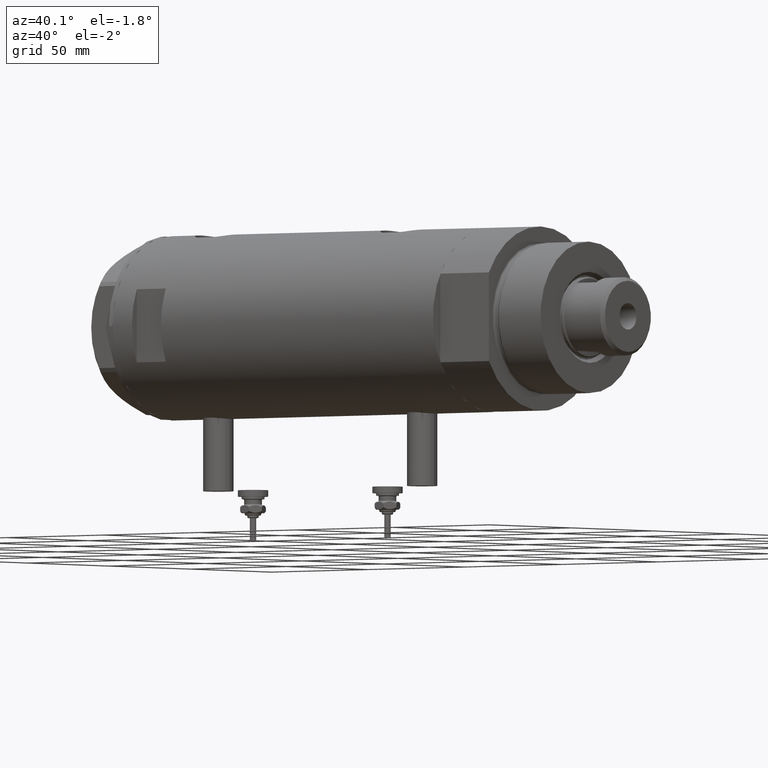
[diagram: clean part render]
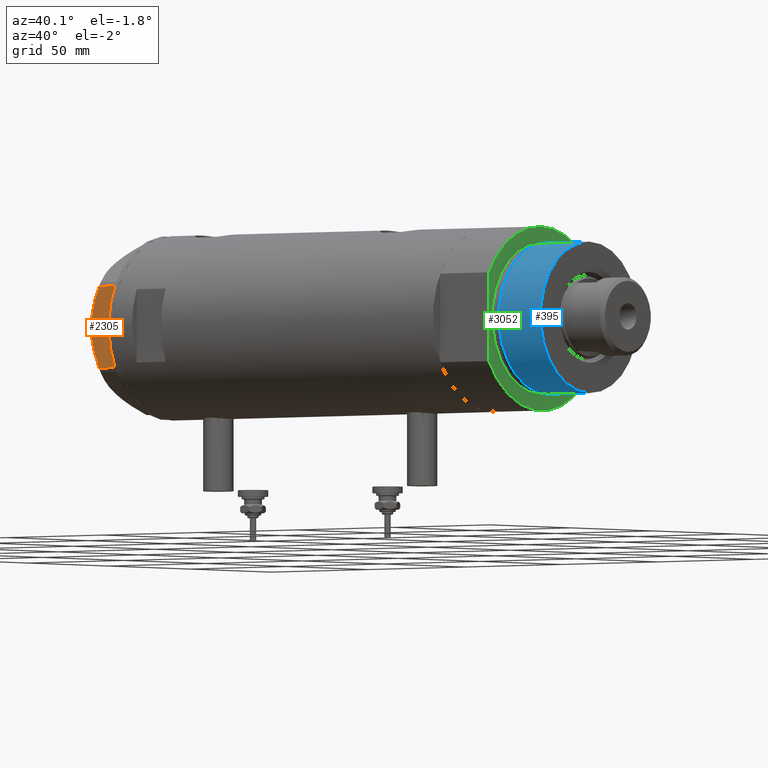
[diagram: same view with three faces highlighted in distinct colors, each labeled with its STEP entity id]
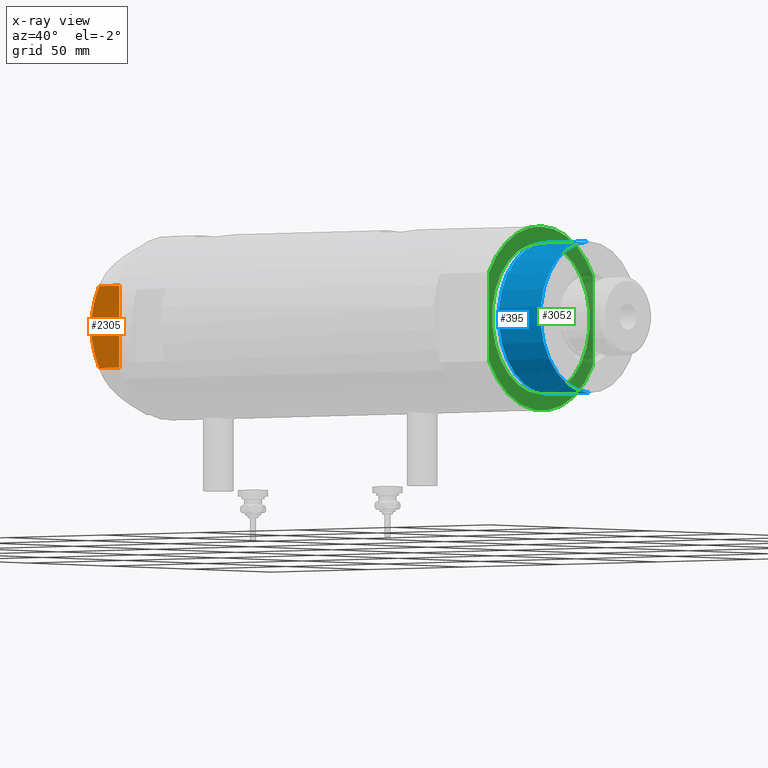
[diagram: x-ray of the same camera — body ghosted, the three highlighted faces saturated]
A machine part, auxiliary view with three faces highlighted in distinct colors.
The next image is the same camera in x-ray (body ghosted, the three faces saturated) — at least one of them is partly hidden behind the body in this view.
Their STEP definitions:

[orange] entity #2305 — the highlighted planar face has unit normal (-0, 1, 0).
#73 = CARTESIAN_POINT ( 'NONE',  ( -30.00000000000000000, 16.20050807568875584, 10.40518423703603546 ) ) ;
#97 = VERTEX_POINT ( 'NONE', #157 ) ;
#105 = FACE_OUTER_BOUND ( 'NONE', #4644, .T. ) ;
#157 = CARTESIAN_POINT ( 'NONE',  ( -30.00000000000000000, -16.20050807568876294, 0.000000000000000000 ) ) ;
#203 = VECTOR ( 'NONE', #2700, 1000.000000000000000 ) ;
#223 = CARTESIAN_POINT ( 'NONE',  ( -29.99999999999999289, -13.63320717147166405, 11.55272916346384804 ) ) ;
#227 = EDGE_CURVE ( 'NONE', #5030, #296, #5788, .T. ) ;
#296 = VERTEX_POINT ( 'NONE', #500 ) ;
#299 = CARTESIAN_POINT ( 'NONE',  ( -30.00000000000000000, -16.20050807568876294, 10.40518423703603901 ) ) ;
#353 = CARTESIAN_POINT ( 'NONE',  ( -30.00000000000000000, 0.000000000000000000, 14.50000000000000000 ) ) ;
#400 = ORIENTED_EDGE ( 'NONE', *, *, #4878, .T. ) ;
#500 = CARTESIAN_POINT ( 'NONE',  ( -30.00000000000000000, 16.20050807568875584, 0.000000000000000000 ) ) ;
#507 = VERTEX_POINT ( 'NONE', #5776 ) ;
#867 = CARTESIAN_POINT ( 'NONE',  ( -30.00000000000000000, 16.20050807568875584, 14.50000000000000000 ) ) ;
#922 = EDGE_CURVE ( 'NONE', #5118, #507, #4824, .T. ) ;
#932 = ORIENTED_EDGE ( 'NONE', *, *, #3757, .F. ) ;
#1185 = CARTESIAN_POINT ( 'NONE',  ( -30.00000000000000000, -0.7060353153488233557, 14.49999999999999822 ) ) ;
#1221 = LINE ( 'NONE', #5331, #3192 ) ;
#1722 = ORIENTED_EDGE ( 'NONE', *, *, #227, .T. ) ;
#1750 = CARTESIAN_POINT ( 'NONE',  ( -30.00000000000000000, 16.20050807568875584, 10.40518423703603546 ) ) ;
#1806 = DIRECTION ( 'NONE',  ( -0.000000000000000000, 0.000000000000000000, -1.000000000000000000 ) ) ;
#1849 = VECTOR ( 'NONE', #5240, 1000.000000000000000 ) ;
#2066 = CARTESIAN_POINT ( 'NONE',  ( -30.00000000000000355, -1.418661615092686290, 14.47469700449902952 ) ) ;
#2097 = CARTESIAN_POINT ( 'NONE',  ( -29.99999999999999289, -14.92797448277034533, 10.99622797424084553 ) ) ;
#2110 = AXIS2_PLACEMENT_3D ( 'NONE', #4120, #5578, #1806 ) ;
#2231 = CARTESIAN_POINT ( 'NONE',  ( -30.00000000000000000, 0.000000000000000000, 14.50000000000000000 ) ) ;
#2305 = ADVANCED_FACE ( 'NONE', ( #105 ), #3311, .F. ) ;
#2647 = CARTESIAN_POINT ( 'NONE',  ( -30.00000000000000000, 5.593935073701701732, 14.09487059093540573 ) ) ;
#2700 = DIRECTION ( 'NONE',  ( 0.000000000000000000, 0.000000000000000000, -1.000000000000000000 ) ) ;
#2903 = LINE ( 'NONE', #3896, #1849 ) ;
#2972 = CARTESIAN_POINT ( 'NONE',  ( -29.99999999999999289, -15.56759648729806322, 10.70591879357992227 ) ) ;
#3004 = CARTESIAN_POINT ( 'NONE',  ( -29.99999999999999645, -9.671229349009038856, 13.00645148086949554 ) ) ;
#3058 = CARTESIAN_POINT ( 'NONE',  ( -29.99999999999999645, -12.97715359595204809, 11.81918444541430624 ) ) ;
#3093 = CARTESIAN_POINT ( 'NONE',  ( -30.00000000000000711, 8.981118657900116986, 13.19130745470829247 ) ) ;
#3192 = VECTOR ( 'NONE', #3500, 1000.000000000000000 ) ;
#3311 = PLANE ( 'NONE',  #2110 ) ;
#3399 = CARTESIAN_POINT ( 'NONE',  ( -30.00000000000000000, -3.526431665117130798, 14.30125973663612626 ) ) ;
#3500 = DIRECTION ( 'NONE',  ( 0.000000000000000000, -1.000000000000000000, 0.000000000000000000 ) ) ;
#3549 = CARTESIAN_POINT ( 'NONE',  ( -30.00000000000000000, 11.66725319103952607, 12.31690447555093293 ) ) ;
#3582 = CARTESIAN_POINT ( 'NONE',  ( -30.00000000000000355, 13.64854889245356695, 11.56384586935411996 ) ) ;
#3757 = EDGE_CURVE ( 'NONE', #5030, #5118, #5785, .T. ) ;
#3896 = CARTESIAN_POINT ( 'NONE',  ( -30.00000000000000000, -16.20050807568876294, 14.50000000000000000 ) ) ;
#3906 = CARTESIAN_POINT ( 'NONE',  ( -30.00000000000000000, 0.000000000000000000, 14.50000000000000000 ) ) ;
#4120 = CARTESIAN_POINT ( 'NONE',  ( -30.00000000000000000, 17.32050807568877460, 14.50000000000000000 ) ) ;
#4364 = EDGE_CURVE ( 'NONE', #97, #507, #2903, .T. ) ;
#4377 = CARTESIAN_POINT ( 'NONE',  ( -29.99999999999999289, -5.607365453019637513, 14.01139032121647965 ) ) ;
#4414 = CARTESIAN_POINT ( 'NONE',  ( -30.00000000000000000, -6.973771051792319042, 13.72753822183687511 ) ) ;
#4644 = EDGE_LOOP ( 'NONE', ( #932, #1722, #400, #5235, #5794 ) ) ;
#4824 = B_SPLINE_CURVE_WITH_KNOTS ( 'NONE', 3,
 ( #3906, #1185, #2066, #5349, #3399, #4377, #4414, #3004, #4862, #3058, #223, #2097, #2972, #299 ),
 .UNSPECIFIED., .F., .F.,
 ( 4, 2, 2, 2, 2, 2, 4 ),
 ( 0.06183748343640969869, 0.06393495742991751885, 0.06603243142342535288, 0.07022737941044099319, 0.07442232739745664738, 0.07651980139096448141, 0.07861727538447230157 ),
 .UNSPECIFIED. ) ;
#4862 = CARTESIAN_POINT ( 'NONE',  ( -30.00000000000000000, -11.00230860792644982, 12.56933207488871673 ) ) ;
#4878 = EDGE_CURVE ( 'NONE', #296, #97, #1221, .T. ) ;
#4924 = CARTESIAN_POINT ( 'NONE',  ( -30.00000000000000711, 2.830925467268496476, 14.50000000000000533 ) ) ;
#4980 = CARTESIAN_POINT ( 'NONE',  ( -30.00000000000001421, 14.93680064777130312, 11.00564802993687508 ) ) ;
#5030 = VERTEX_POINT ( 'NONE', #73 ) ;
#5118 = VERTEX_POINT ( 'NONE', #2231 ) ;
#5235 = ORIENTED_EDGE ( 'NONE', *, *, #4364, .T. ) ;
#5240 = DIRECTION ( 'NONE',  ( 0.000000000000000000, 0.000000000000000000, 1.000000000000000000 ) ) ;
#5331 = CARTESIAN_POINT ( 'NONE',  ( -30.00000000000000000, 17.32050807568877460, 0.000000000000000000 ) ) ;
#5349 = CARTESIAN_POINT ( 'NONE',  ( -29.99999999999999645, -2.827567415490778835, 14.37523681947611109 ) ) ;
#5387 = CARTESIAN_POINT ( 'NONE',  ( -30.00000000000000355, 10.99748736931232607, 12.55407623651775495 ) ) ;
#5578 = DIRECTION ( 'NONE',  ( 1.000000000000000000, 0.000000000000000000, -0.000000000000000000 ) ) ;
#5776 = CARTESIAN_POINT ( 'NONE',  ( -30.00000000000000000, -16.20050807568876294, 10.40518423703603901 ) ) ;
#5785 = B_SPLINE_CURVE_WITH_KNOTS ( 'NONE', 3,
 ( #1750, #4980, #3582, #3549, #5387, #5926, #3093, #2647, #4924, #353 ),
 .UNSPECIFIED., .F., .F.,
 ( 4, 2, 2, 2, 4 ),
 ( 0.04501738275285960267, 0.04922240792374713014, 0.05132492050919089388, 0.05342743309463465068, 0.06183748343640969869 ),
 .UNSPECIFIED. ) ;
#5788 = LINE ( 'NONE', #867, #203 ) ;
#5794 = ORIENTED_EDGE ( 'NONE', *, *, #922, .F. ) ;
#5926 = CARTESIAN_POINT ( 'NONE',  ( -30.00000000000000000, 9.655259153795977767, 12.99093232113973606 ) ) ;

[blue] entity #395 — the highlighted cylindrical surface (partial cylindrical patch) has radius 30 mm, axis along (-1, -0, 0).
#18 = DIRECTION ( 'NONE',  ( 1.000000000000000000, 0.000000000000000000, 0.000000000000000000 ) ) ;
#121 = CARTESIAN_POINT ( 'NONE',  ( 30.00000000000000000, 3.673940397442058389E-15, 28.57384048104054486 ) ) ;
#395 = ADVANCED_FACE ( 'NONE', ( #1824 ), #2298, .T. ) ;
#583 = DIRECTION ( 'NONE',  ( -0.000000000000000000, -0.000000000000000000, -1.000000000000000000 ) ) ;
#737 = ORIENTED_EDGE ( 'NONE', *, *, #4740, .T. ) ;
#847 = VECTOR ( 'NONE', #583, 1000.000000000000000 ) ;
#854 = DIRECTION ( 'NONE',  ( -0.000000000000000000, -0.000000000000000000, -1.000000000000000000 ) ) ;
#914 = DIRECTION ( 'NONE',  ( 0.000000000000000000, 0.000000000000000000, 1.000000000000000000 ) ) ;
#1007 = EDGE_CURVE ( 'NONE', #3544, #5259, #1908, .T. ) ;
#1131 = CARTESIAN_POINT ( 'NONE',  ( 0.000000000000000000, 0.000000000000000000, 28.57384048104054486 ) ) ;
#1255 = VECTOR ( 'NONE', #854, 1000.000000000000000 ) ;
#1274 = LINE ( 'NONE', #4923, #1255 ) ;
#1588 = ORIENTED_EDGE ( 'NONE', *, *, #1795, .T. ) ;
#1736 = ORIENTED_EDGE ( 'NONE', *, *, #5630, .F. ) ;
#1795 = EDGE_CURVE ( 'NONE', #3544, #2660, #1274, .T. ) ;
#1824 = FACE_OUTER_BOUND ( 'NONE', #4325, .T. ) ;
#1908 = CIRCLE ( 'NONE', #4397, 30.00000000000000000 ) ;
#2298 = CYLINDRICAL_SURFACE ( 'NONE', #2405, 30.00000000000000000 ) ;
#2315 = CARTESIAN_POINT ( 'NONE',  ( -30.00000000000000000, 0.000000000000000000, 50.19999999999999574 ) ) ;
#2405 = AXIS2_PLACEMENT_3D ( 'NONE', #5096, #5152, #3753 ) ;
#2660 = VERTEX_POINT ( 'NONE', #3938 ) ;
#2774 = ORIENTED_EDGE ( 'NONE', *, *, #1007, .F. ) ;
#2818 = CARTESIAN_POINT ( 'NONE',  ( 30.00000000000000000, 3.673940397442058389E-15, 50.19999999999999574 ) ) ;
#2942 = DIRECTION ( 'NONE',  ( -0.000000000000000000, -0.000000000000000000, 1.000000000000000000 ) ) ;
#3284 = VERTEX_POINT ( 'NONE', #121 ) ;
#3544 = VERTEX_POINT ( 'NONE', #2315 ) ;
#3551 = CARTESIAN_POINT ( 'NONE',  ( 0.000000000000000000, 0.000000000000000000, 50.19999999999999574 ) ) ;
#3753 = DIRECTION ( 'NONE',  ( -1.000000000000000000, 0.000000000000000000, 0.000000000000000000 ) ) ;
#3938 = CARTESIAN_POINT ( 'NONE',  ( -30.00000000000000000, 0.000000000000000000, 28.57384048104054486 ) ) ;
#3964 = CIRCLE ( 'NONE', #4341, 30.00000000000000000 ) ;
#4285 = CARTESIAN_POINT ( 'NONE',  ( 30.00000000000000000, 3.673940397442058389E-15, 50.19999999999999574 ) ) ;
#4325 = EDGE_LOOP ( 'NONE', ( #1736, #2774, #1588, #737 ) ) ;
#4341 = AXIS2_PLACEMENT_3D ( 'NONE', #1131, #2942, #4788 ) ;
#4397 = AXIS2_PLACEMENT_3D ( 'NONE', #3551, #914, #18 ) ;
#4740 = EDGE_CURVE ( 'NONE', #2660, #3284, #3964, .T. ) ;
#4788 = DIRECTION ( 'NONE',  ( 1.000000000000000000, 0.000000000000000000, 0.000000000000000000 ) ) ;
#4923 = CARTESIAN_POINT ( 'NONE',  ( -30.00000000000000000, 0.000000000000000000, 50.19999999999999574 ) ) ;
#5096 = CARTESIAN_POINT ( 'NONE',  ( 0.000000000000000000, 0.000000000000000000, 50.19999999999999574 ) ) ;
#5152 = DIRECTION ( 'NONE',  ( -0.000000000000000000, -0.000000000000000000, -1.000000000000000000 ) ) ;
#5259 = VERTEX_POINT ( 'NONE', #4285 ) ;
#5630 = EDGE_CURVE ( 'NONE', #5259, #3284, #5669, .T. ) ;
#5669 = LINE ( 'NONE', #2818, #847 ) ;

[green] entity #3052 — the highlighted planar face has unit normal (1, 0, -0).
#117 = EDGE_CURVE ( 'NONE', #3713, #5102, #2004, .T. ) ;
#140 = DIRECTION ( 'NONE',  ( 0.000000000000000000, 0.000000000000000000, 1.000000000000000000 ) ) ;
#164 = DIRECTION ( 'NONE',  ( 1.000000000000000000, 0.000000000000000000, 0.000000000000000000 ) ) ;
#207 = AXIS2_PLACEMENT_3D ( 'NONE', #1320, #3264, #3661 ) ;
#371 = CIRCLE ( 'NONE', #5262, 36.50000000000000000 ) ;
#391 = DIRECTION ( 'NONE',  ( 1.000000000000000000, 0.000000000000000000, 0.000000000000000000 ) ) ;
#404 = EDGE_CURVE ( 'NONE', #2767, #4787, #3653, .T. ) ;
#527 = CARTESIAN_POINT ( 'NONE',  ( 0.000000000000000000, 0.000000000000000000, 25.19999999999999929 ) ) ;
#533 = CARTESIAN_POINT ( 'NONE',  ( -17.55704986607943496, 32.00000000000000000, 25.19999999999999929 ) ) ;
#550 = ORIENTED_EDGE ( 'NONE', *, *, #117, .F. ) ;
#569 = CIRCLE ( 'NONE', #765, 30.00000000000000355 ) ;
#573 = AXIS2_PLACEMENT_3D ( 'NONE', #5451, #764, #4934 ) ;
#605 = CARTESIAN_POINT ( 'NONE',  ( 0.000000000000000000, 0.000000000000000000, 25.19999999999999929 ) ) ;
#725 = EDGE_CURVE ( 'NONE', #4787, #5102, #371, .T. ) ;
#742 = DIRECTION ( 'NONE',  ( -0.000000000000000000, -0.000000000000000000, -1.000000000000000000 ) ) ;
#764 = DIRECTION ( 'NONE',  ( -0.000000000000000000, -0.000000000000000000, -1.000000000000000000 ) ) ;
#765 = AXIS2_PLACEMENT_3D ( 'NONE', #3451, #742, #5790 ) ;
#903 = FACE_OUTER_BOUND ( 'NONE', #1697, .T. ) ;
#1063 = CARTESIAN_POINT ( 'NONE',  ( -17.55704986607943496, -32.00000000000000000, 25.19999999999999929 ) ) ;
#1065 = CIRCLE ( 'NONE', #2963, 36.50000000000000000 ) ;
#1107 = EDGE_CURVE ( 'NONE', #2767, #1794, #1778, .T. ) ;
#1233 = CARTESIAN_POINT ( 'NONE',  ( 30.00000000000000355, 0.000000000000000000, 25.19999999999999929 ) ) ;
#1320 = CARTESIAN_POINT ( 'NONE',  ( 0.000000000000000000, 0.000000000000000000, 25.19999999999999929 ) ) ;
#1333 = EDGE_CURVE ( 'NONE', #5307, #3736, #569, .T. ) ;
#1439 = EDGE_CURVE ( 'NONE', #3713, #1794, #1065, .T. ) ;
#1445 = FACE_BOUND ( 'NONE', #4765, .T. ) ;
#1461 = AXIS2_PLACEMENT_3D ( 'NONE', #527, #5499, #4185 ) ;
#1697 = EDGE_LOOP ( 'NONE', ( #550, #3438, #5670, #2033, #3688 ) ) ;
#1724 = VECTOR ( 'NONE', #4319, 1000.000000000000000 ) ;
#1741 = CARTESIAN_POINT ( 'NONE',  ( 0.000000000000000000, 0.000000000000000000, 25.19999999999999929 ) ) ;
#1778 = LINE ( 'NONE', #5927, #5172 ) ;
#1794 = VERTEX_POINT ( 'NONE', #5386 ) ;
#1823 = PLANE ( 'NONE',  #207 ) ;
#1866 = EDGE_CURVE ( 'NONE', #3736, #5307, #3262, .T. ) ;
#2004 = LINE ( 'NONE', #3847, #1724 ) ;
#2033 = ORIENTED_EDGE ( 'NONE', *, *, #404, .T. ) ;
#2767 = VERTEX_POINT ( 'NONE', #533 ) ;
#2963 = AXIS2_PLACEMENT_3D ( 'NONE', #1741, #3575, #4437 ) ;
#3052 = ADVANCED_FACE ( 'NONE', ( #1445, #903 ), #1823, .T. ) ;
#3262 = CIRCLE ( 'NONE', #573, 30.00000000000000355 ) ;
#3264 = DIRECTION ( 'NONE',  ( 0.000000000000000000, 0.000000000000000000, 1.000000000000000000 ) ) ;
#3438 = ORIENTED_EDGE ( 'NONE', *, *, #1439, .T. ) ;
#3451 = CARTESIAN_POINT ( 'NONE',  ( 0.000000000000000000, 0.000000000000000000, 25.19999999999999929 ) ) ;
#3575 = DIRECTION ( 'NONE',  ( 0.000000000000000000, 0.000000000000000000, 1.000000000000000000 ) ) ;
#3653 = CIRCLE ( 'NONE', #1461, 36.50000000000000000 ) ;
#3661 = DIRECTION ( 'NONE',  ( 1.000000000000000000, 0.000000000000000000, -0.000000000000000000 ) ) ;
#3688 = ORIENTED_EDGE ( 'NONE', *, *, #725, .T. ) ;
#3713 = VERTEX_POINT ( 'NONE', #5901 ) ;
#3736 = VERTEX_POINT ( 'NONE', #4024 ) ;
#3847 = CARTESIAN_POINT ( 'NONE',  ( -17.55704986607943141, -32.00000000000000000, 25.19999999999999929 ) ) ;
#4024 = CARTESIAN_POINT ( 'NONE',  ( -30.00000000000000355, 3.673940397442059178E-15, 25.19999999999999929 ) ) ;
#4185 = DIRECTION ( 'NONE',  ( 1.000000000000000000, 0.000000000000000000, 0.000000000000000000 ) ) ;
#4319 = DIRECTION ( 'NONE',  ( -1.000000000000000000, -0.000000000000000000, -0.000000000000000000 ) ) ;
#4437 = DIRECTION ( 'NONE',  ( 1.000000000000000000, 0.000000000000000000, 0.000000000000000000 ) ) ;
#4765 = EDGE_LOOP ( 'NONE', ( #4795, #5435 ) ) ;
#4787 = VERTEX_POINT ( 'NONE', #4821 ) ;
#4795 = ORIENTED_EDGE ( 'NONE', *, *, #1333, .T. ) ;
#4821 = CARTESIAN_POINT ( 'NONE',  ( -36.50000000000000000, 0.000000000000000000, 25.19999999999999929 ) ) ;
#4934 = DIRECTION ( 'NONE',  ( 1.000000000000000000, 0.000000000000000000, 0.000000000000000000 ) ) ;
#5102 = VERTEX_POINT ( 'NONE', #1063 ) ;
#5172 = VECTOR ( 'NONE', #391, 1000.000000000000000 ) ;
#5262 = AXIS2_PLACEMENT_3D ( 'NONE', #605, #140, #164 ) ;
#5307 = VERTEX_POINT ( 'NONE', #1233 ) ;
#5386 = CARTESIAN_POINT ( 'NONE',  ( 17.55704986607943496, 32.00000000000000000, 25.19999999999999929 ) ) ;
#5435 = ORIENTED_EDGE ( 'NONE', *, *, #1866, .T. ) ;
#5451 = CARTESIAN_POINT ( 'NONE',  ( 0.000000000000000000, 0.000000000000000000, 25.19999999999999929 ) ) ;
#5499 = DIRECTION ( 'NONE',  ( 0.000000000000000000, 0.000000000000000000, 1.000000000000000000 ) ) ;
#5670 = ORIENTED_EDGE ( 'NONE', *, *, #1107, .F. ) ;
#5790 = DIRECTION ( 'NONE',  ( 1.000000000000000000, 0.000000000000000000, 0.000000000000000000 ) ) ;
#5901 = CARTESIAN_POINT ( 'NONE',  ( 17.55704986607943496, -32.00000000000000000, 25.19999999999999929 ) ) ;
#5927 = CARTESIAN_POINT ( 'NONE',  ( -17.55704986607943141, 32.00000000000000000, 25.19999999999999929 ) ) ;